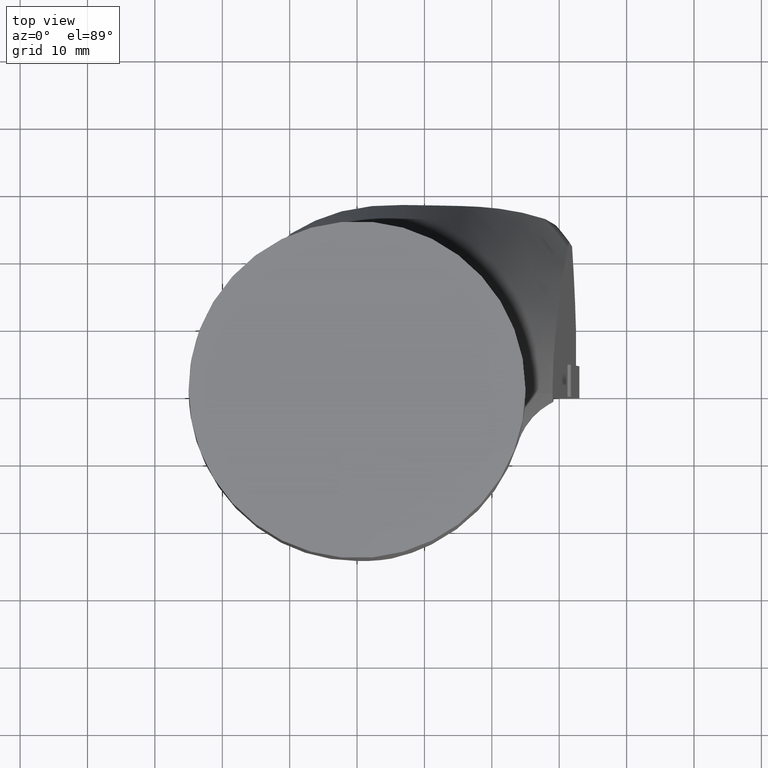
[diagram: clean part render]
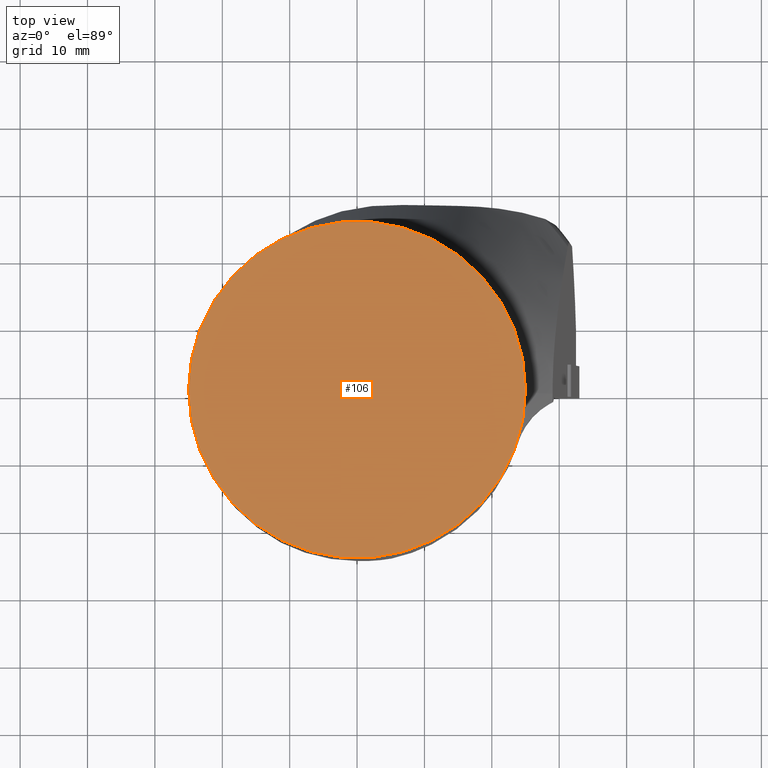
[diagram: same view with one face highlighted and labeled with its STEP entity id]
A machine part, top view. The second image highlights one B-rep face of the part: STEP entity #106.
In plain terms, the highlighted planar face has unit normal (0, 0, 1).
Its self-contained STEP definition (entity closure, byte-faithful):
#106=ADVANCED_FACE('',(#170),#171,.T.);
#170=FACE_OUTER_BOUND('',#306,.T.);
#171=PLANE('',#307);
#306=EDGE_LOOP('',(#570,#571));
#307=AXIS2_PLACEMENT_3D('',#572,#573,#574);
#570=ORIENTED_EDGE('',*,*,#635,.F.);
#571=ORIENTED_EDGE('',*,*,#640,.F.);
#572=CARTESIAN_POINT('',(0.0,0.0,0.0));
#573=DIRECTION('',(0.0,0.0,1.0));
#574=DIRECTION('',(1.0,0.0,0.0));
#635=EDGE_CURVE('',#769,#763,#771,.T.);
#640=EDGE_CURVE('',#763,#769,#778,.T.);
#763=VERTEX_POINT('',#993);
#769=VERTEX_POINT('',#1000);
#771=CIRCLE('',#1003,25.0);
#778=CIRCLE('',#1047,25.0);
#993=CARTESIAN_POINT('',(25.0,6.273356E-015,9.947598E-014));
#1000=CARTESIAN_POINT('',(-25.0,-6.294167E-015,2.131628E-013));
#1003=AXIS2_PLACEMENT_3D('',#1242,#1243,#1244);
#1047=AXIS2_PLACEMENT_3D('',#1247,#1248,#1249);
#1242=CARTESIAN_POINT('',(7.105427E-015,6.255621E-015,9.947598E-014));
#1243=DIRECTION('',(0.0,0.0,-1.0));
#1244=DIRECTION('',(1.0,0.0,0.0));
#1247=CARTESIAN_POINT('',(7.105427E-015,6.255621E-015,9.947598E-014));
#1248=DIRECTION('',(0.0,0.0,-1.0));
#1249=DIRECTION('',(1.0,0.0,0.0));